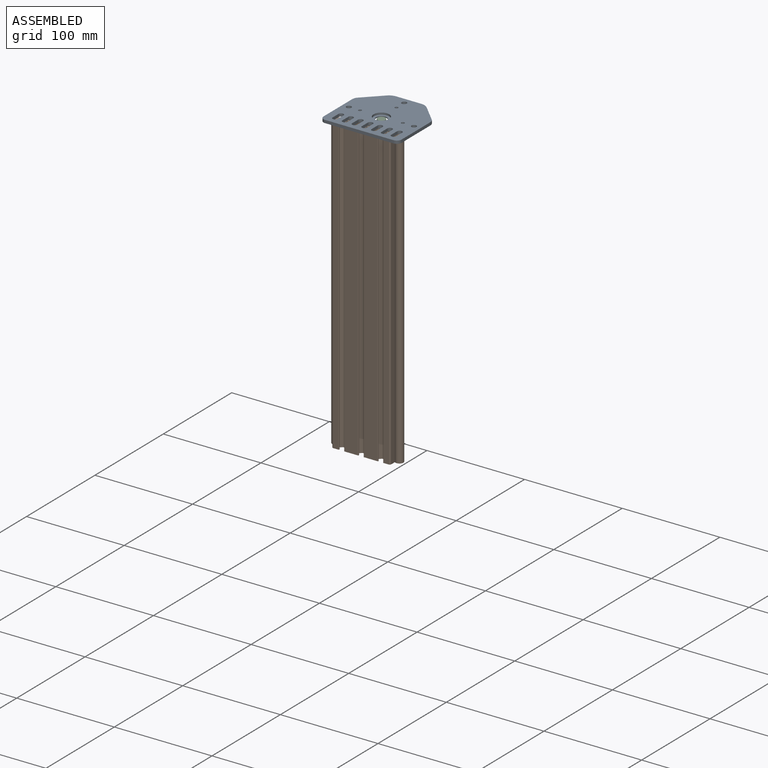
[diagram: assembled view]
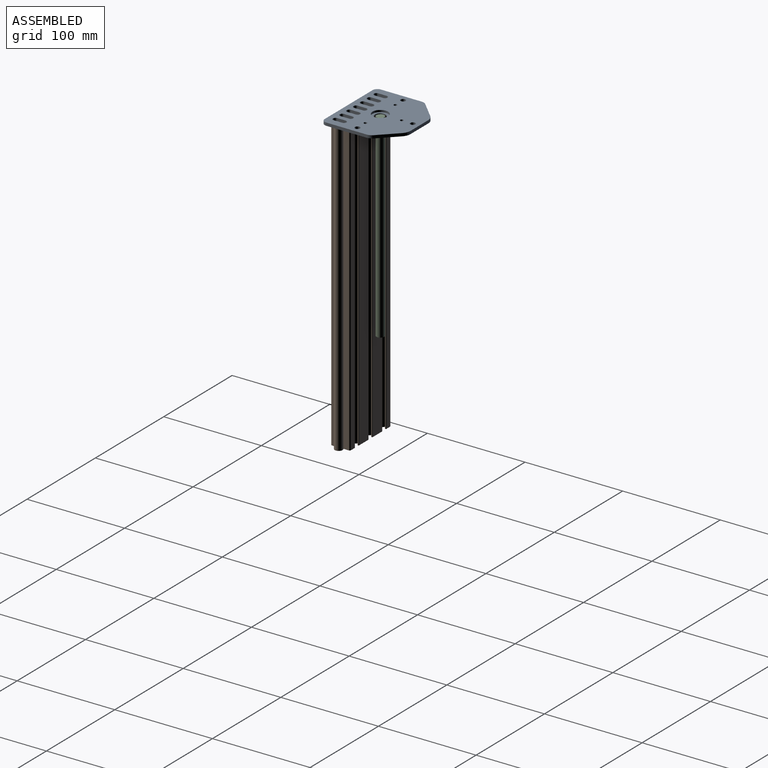
[diagram: assembled view, second angle]
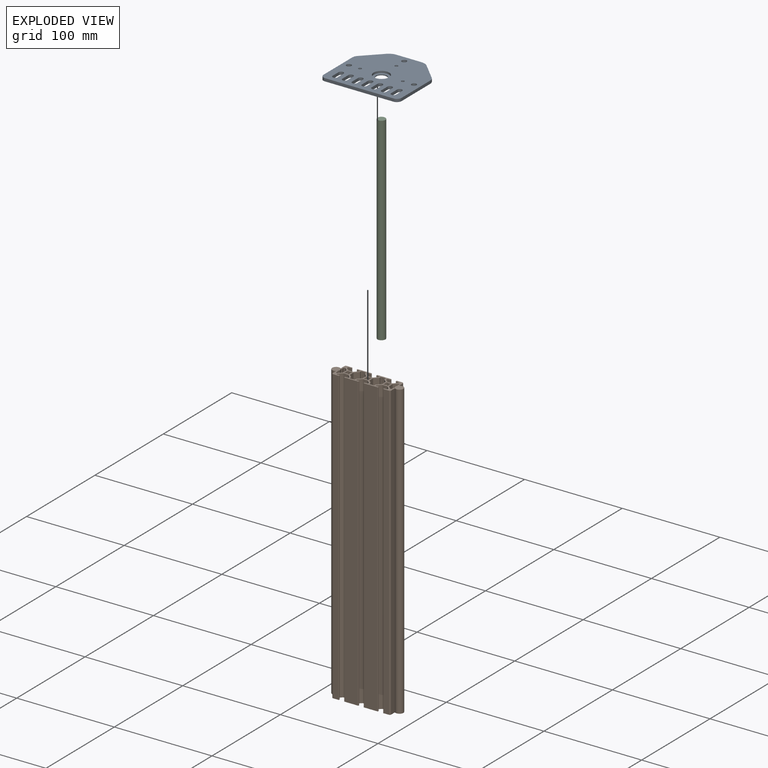
[diagram: exploded view]
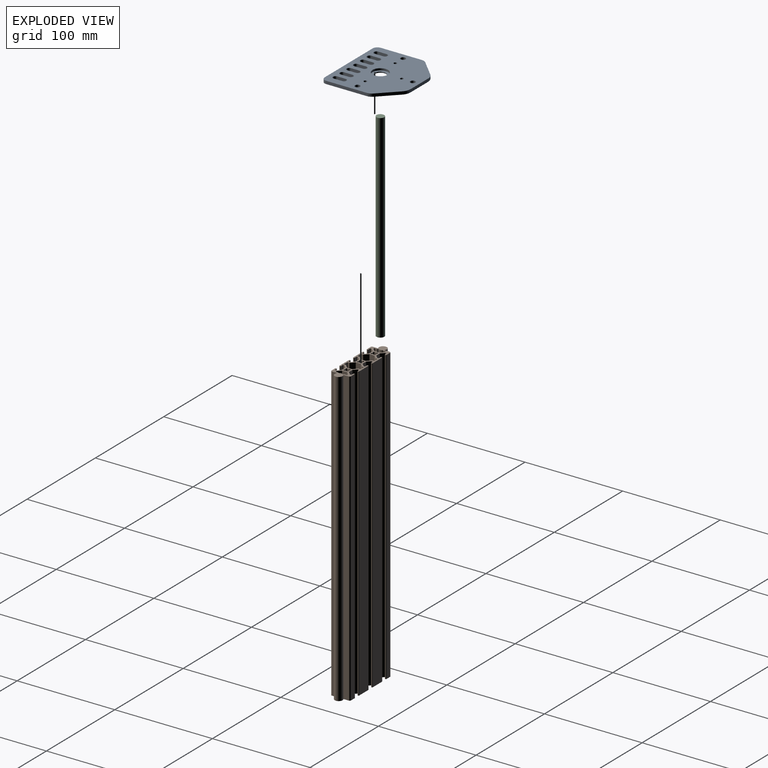
[diagram: exploded view, second angle]
ASSEMBLY  parts=3 mates=2
PART A: 51 faces, bbox 80x72.5x3 mm
  f0: cylinder r=8.02mm len=16.05mm, axis (0,0,1), area 100.8mm2, adj f15,f50
  f1: cylinder r=2.55mm len=5.1mm, axis (0,0,-1), area 48.1mm2, adj f15,f16
  f2: cylinder r=2.55mm len=5.1mm, axis (0,0,-1), area 48.1mm2, adj f15,f16
  f3: cylinder r=2.55mm len=5.1mm, axis (0,0,-1), area 48.1mm2, adj f15,f16
  f4: cylinder r=2.55mm len=5.1mm, axis (0,0,-1), area 24mm2, adj f15,f16,f48,f49
  f5: cylinder r=2.55mm len=5.1mm, axis (0,0,-1), area 24mm2, adj f15,f16,f45,f46
  f6: cylinder r=2.55mm len=5.1mm, axis (0,0,-1), area 24mm2, adj f15,f16,f42,f43
  f7: cylinder r=2.55mm len=5.1mm, axis (0,0,-1), area 24mm2, adj f15,f16,f39,f40
  f8: cylinder r=2.55mm len=5.1mm, axis (0,0,-1), area 24mm2, adj f15,f16,f36,f37
  f9: cylinder r=2.55mm len=5.1mm, axis (0,0,-1), area 24mm2, adj f15,f16,f33,f34
  f10: cylinder r=2.55mm len=5.1mm, axis (0,0,-1), area 24mm2, adj f15,f16,f30,f31
  f11: cylinder r=1.6mm len=3.2mm, axis (0,0,-1), area 30.2mm2, adj f15,f16
  f12: cylinder r=1.6mm len=3.2mm, axis (0,0,-1), area 30.2mm2, adj f15,f16
  f13: cylinder r=1.6mm len=3.2mm, axis (0,0,-1), area 30.2mm2, adj f15,f16
  f14: cylinder r=5.5mm len=11mm, axis (0,0,-1), area 34.6mm2, adj f16,f50
  f15: plane 80x72.5mm, normal (0,0,1), area 4525.9mm2, adj f0,f1,f2,f3,f4,f5,f6,f7
  f16: plane 80x72.5mm, normal (0,0,-1), area 4633.2mm2, adj f1,f2,f3,f4,f5,f6,f7,f8
  f17: cylinder r=5mm len=5mm, axis (0,0,-1), area 23.6mm2, adj f15,f16,f18,f28
  f18: plane 70x3mm, normal (0,-1,0), area 210mm2, adj f15,f16,f17,f19
  f19: cylinder r=5mm len=5mm, axis (0,0,-1), area 23.6mm2, adj f15,f16,f18,f20
  f20: plane 41.81x3mm, normal (1,0,0), area 125.4mm2, adj f15,f16,f19,f21
  f21: cylinder r=7.25mm len=5.13mm, axis (0,0,-1), area 17.1mm2, adj f15,f16,f20,f22
  f22: plane 17.44x17.44mm, normal (0.71,0.71,0), area 74mm2, adj f15,f16,f21,f23
  f23: cylinder r=10.68mm len=7.55mm, axis (0,0,-1), area 25.2mm2, adj f15,f16,f22,f24
  f24: plane 25.77x3mm, normal (0,1,0), area 77.3mm2, adj f15,f16,f23,f25
  f25: cylinder r=10.68mm len=7.55mm, axis (0,0,-1), area 25.2mm2, adj f15,f16,f24,f26
  f26: plane 17.44x17.44mm, normal (-0.71,0.71,0), area 74mm2, adj f15,f16,f25,f27
  f27: cylinder r=7.25mm len=5.13mm, axis (0,0,-1), area 17.1mm2, adj f15,f16,f26,f28
  f28: plane 41.81x3mm, normal (-1,0,0), area 125.4mm2, adj f15,f16,f17,f27
  f29: cylinder r=2.55mm len=5.1mm, axis (0,0,-1), area 24mm2, adj f15,f16,f30,f31
  f30: plane 8.7x3mm, normal (-1,0,0), area 26.1mm2, adj f10,f15,f16,f29
  f31: plane 8.7x3mm, normal (1,0,0), area 26.1mm2, adj f10,f15,f16,f29
  f32: cylinder r=2.55mm len=5.1mm, axis (0,0,-1), area 24mm2, adj f15,f16,f33,f34
  f33: plane 8.7x3mm, normal (-1,0,0), area 26.1mm2, adj f9,f15,f16,f32
  f34: plane 8.7x3mm, normal (1,0,0), area 26.1mm2, adj f9,f15,f16,f32
  f35: cylinder r=2.55mm len=5.1mm, axis (0,0,-1), area 24mm2, adj f15,f16,f36,f37
  f36: plane 8.7x3mm, normal (-1,0,0), area 26.1mm2, adj f8,f15,f16,f35
  f37: plane 8.7x3mm, normal (1,0,0), area 26.1mm2, adj f8,f15,f16,f35
  f38: cylinder r=2.55mm len=5.1mm, axis (0,0,-1), area 24mm2, adj f15,f16,f39,f40
  f39: plane 8.7x3mm, normal (-1,0,0), area 26.1mm2, adj f7,f15,f16,f38
  f40: plane 8.7x3mm, normal (1,0,0), area 26.1mm2, adj f7,f15,f16,f38
  f41: cylinder r=2.55mm len=5.1mm, axis (0,0,-1), area 24mm2, adj f15,f16,f42,f43
  f42: plane 8.7x3mm, normal (-1,0,0), area 26.1mm2, adj f6,f15,f16,f41
  f43: plane 8.7x3mm, normal (1,0,0), area 26.1mm2, adj f6,f15,f16,f41
  f44: cylinder r=2.55mm len=5.1mm, axis (0,0,-1), area 24mm2, adj f15,f16,f45,f46
  f45: plane 8.7x3mm, normal (-1,0,0), area 26.1mm2, adj f5,f15,f16,f44
  f46: plane 8.7x3mm, normal (1,0,0), area 26.1mm2, adj f5,f15,f16,f44
  f47: cylinder r=2.55mm len=5.1mm, axis (0,0,-1), area 24mm2, adj f15,f16,f48,f49
  f48: plane 8.7x3mm, normal (-1,0,0), area 26.1mm2, adj f4,f15,f16,f47
  f49: plane 8.7x3mm, normal (1,0,0), area 26.1mm2, adj f4,f15,f16,f47
  f50: plane 16.05x16.05mm, normal (0,0,1), area 107.3mm2, adj f0,f14
PART B: 266 faces, bbox 72.9x20x300 mm
  f0: plane 300x3.54mm, normal (0.71,0.71,0), area 1502.9mm2, adj f1,f263,f264,f265
  f1: cylinder r=0.51mm len=300mm, axis (0,0,-1), area 119.7mm2, adj f0,f2,f264,f265
  f2: plane 300x4.77mm, normal (1,0,0), area 1430.4mm2, adj f1,f3,f264,f265
  f3: cylinder r=0.51mm len=300mm, axis (0,0,-1), area 119.7mm2, adj f2,f4,f264,f265
  f4: plane 300x3.54mm, normal (0.71,-0.71,0), area 1502.9mm2, adj f3,f5,f264,f265
  f5: cylinder r=0.51mm len=300mm, axis (0,0,-1), area 119.7mm2, adj f4,f6,f264,f265
  f6: plane 300x1.35mm, normal (1,0,0), area 404.2mm2, adj f5,f7,f264,f265
  f7: cylinder r=0.51mm len=300mm, axis (0,0,-1), area 239.4mm2, adj f6,f8,f264,f265
  f8: plane 300x3.99mm, normal (0,-1,0), area 1198.2mm2, adj f7,f9,f264,f265
  f9: cylinder r=0.51mm len=300mm, axis (0,0,-1), area 239.4mm2, adj f8,f10,f264,f265
  f10: plane 300x1.35mm, normal (-1,0,0), area 404.2mm2, adj f9,f11,f264,f265
  f11: cylinder r=0.51mm len=300mm, axis (0,0,-1), area 119.7mm2, adj f10,f12,f264,f265
  f12: plane 300x3.54mm, normal (-0.71,-0.71,0), area 1502.9mm2, adj f11,f13,f264,f265
  f13: cylinder r=0.51mm len=300mm, axis (0,0,-1), area 119.7mm2, adj f12,f14,f264,f265
  f14: plane 300x4.77mm, normal (-1,0,0), area 1430.4mm2, adj f13,f15,f264,f265
  f15: cylinder r=0.51mm len=300mm, axis (0,0,-1), area 119.7mm2, adj f14,f16,f264,f265
  f16: plane 300x3.54mm, normal (-0.71,0.71,0), area 1502.9mm2, adj f15,f17,f264,f265
  f17: cylinder r=0.51mm len=300mm, axis (0,0,-1), area 119.7mm2, adj f16,f18,f264,f265
  f18: plane 300x1.35mm, normal (-1,0,0), area 404.2mm2, adj f17,f19,f264,f265
  f19: cylinder r=0.51mm len=300mm, axis (0,0,-1), area 239.4mm2, adj f18,f20,f264,f265
  f20: plane 300x3.99mm, normal (0,1,0), area 1198.2mm2, adj f19,f21,f264,f265
  f21: cylinder r=0.51mm len=300mm, axis (0,0,-1), area 239.4mm2, adj f20,f22,f264,f265
  f22: plane 300x1.35mm, normal (1,0,0), area 404.2mm2, adj f21,f263,f264,f265
  f23: cylinder r=0.79mm len=300mm, axis (0,0,-1), area 499.6mm2, adj f24,f256,f264,f265
  f24: cylinder r=2.1mm len=300mm, axis (0,0,-1), area 495.1mm2, adj f23,f25,f264,f265
  f25: cylinder r=0.79mm len=300mm, axis (0,0,-1), area 499.6mm2, adj f24,f26,f264,f265
  f26: plane 300x0.18mm, normal (-0.71,0.71,0), area 76.2mm2, adj f25,f27,f264,f265
  f27: cylinder r=0.79mm len=300mm, axis (0,0,-1), area 499.6mm2, adj f26,f28,f264,f265
  f28: cylinder r=2.1mm len=300mm, axis (0,0,-1), area 495.1mm2, adj f27,f29,f264,f265
  f29: cylinder r=0.79mm len=300mm, axis (0,0,-1), area 499.6mm2, adj f28,f30,f264,f265
  f30: plane 300x0.18mm, normal (0.71,0.71,0), area 76.2mm2, adj f29,f31,f264,f265
  f31: cylinder r=0.79mm len=300mm, axis (0,0,-1), area 499.6mm2, adj f30,f32,f264,f265
  f32: cylinder r=2.1mm len=300mm, axis (0,0,-1), area 495.1mm2, adj f31,f33,f264,f265
  f33: cylinder r=0.79mm len=300mm, axis (0,0,-1), area 499.6mm2, adj f32,f34,f264,f265
  f34: plane 300x0.18mm, normal (0.71,-0.71,0), area 76.2mm2, adj f33,f35,f264,f265
  f35: cylinder r=0.79mm len=300mm, axis (0,0,-1), area 499.6mm2, adj f34,f36,f264,f265
  f36: cylinder r=2.1mm len=300mm, axis (0,0,-1), area 495.1mm2, adj f35,f37,f264,f265
  f37: cylinder r=0.79mm len=300mm, axis (0,0,-1), area 499.6mm2, adj f36,f256,f264,f265
  f38: plane 300x4.77mm, normal (-1,0,0), area 1430.4mm2, adj f39,f257,f264,f265
  f39: cylinder r=0.51mm len=300mm, axis (0,0,-1), area 119.7mm2, adj f38,f40,f264,f265
  f40: plane 300x3.54mm, normal (-0.71,0.71,0), area 1502.9mm2, adj f39,f41,f264,f265
  f41: cylinder r=0.51mm len=300mm, axis (0,0,-1), area 119.7mm2, adj f40,f42,f264,f265
  f42: plane 300x1.35mm, normal (-1,0,0), area 404.2mm2, adj f41,f43,f264,f265
  f43: cylinder r=0.51mm len=300mm, axis (0,0,-1), area 239.4mm2, adj f42,f44,f264,f265
  f44: plane 300x3.99mm, normal (0,1,0), area 1198.2mm2, adj f43,f45,f264,f265
  f45: cylinder r=0.51mm len=300mm, axis (0,0,-1), area 239.4mm2, adj f44,f46,f264,f265
  f46: plane 300x1.35mm, normal (1,0,0), area 404.2mm2, adj f45,f47,f264,f265
  f47: cylinder r=0.51mm len=300mm, axis (0,0,-1), area 119.7mm2, adj f46,f48,f264,f265
  f48: plane 300x3.54mm, normal (0.71,0.71,0), area 1502.9mm2, adj f47,f49,f264,f265
  f49: cylinder r=0.51mm len=300mm, axis (0,0,-1), area 119.7mm2, adj f48,f50,f264,f265
  f50: plane 300x4.77mm, normal (1,0,0), area 1430.4mm2, adj f49,f51,f264,f265
  f51: cylinder r=0.51mm len=300mm, axis (0,0,-1), area 119.7mm2, adj f50,f52,f264,f265
  f52: plane 300x3.54mm, normal (0.71,-0.71,0), area 1502.9mm2, adj f51,f53,f264,f265
  f53: cylinder r=0.51mm len=300mm, axis (0,0,-1), area 119.7mm2, adj f52,f54,f264,f265
  f54: plane 300x1.35mm, normal (1,0,0), area 404.2mm2, adj f53,f55,f264,f265
  f55: cylinder r=0.51mm len=300mm, axis (0,0,-1), area 239.4mm2, adj f54,f56,f264,f265
  f56: plane 300x3.99mm, normal (0,-1,0), area 1198.2mm2, adj f55,f57,f264,f265
  f57: cylinder r=0.51mm len=300mm, axis (0,0,-1), area 239.4mm2, adj f56,f58,f264,f265
  f58: plane 300x1.35mm, normal (-1,0,0), area 404.2mm2, adj f57,f59,f264,f265
  f59: cylinder r=0.51mm len=300mm, axis (0,0,-1), area 119.7mm2, adj f58,f60,f264,f265
  f60: plane 300x3.54mm, normal (-0.71,-0.71,0), area 1502.9mm2, adj f59,f257,f264,f265
  f61: plane 300x0.18mm, normal (-0.71,0.71,0), area 76.2mm2, adj f62,f258,f264,f265
  f62: cylinder r=0.79mm len=300mm, axis (0,0,-1), area 499.6mm2, adj f61,f63,f264,f265
  f63: cylinder r=2.1mm len=300mm, axis (0,0,-1), area 495.1mm2, adj f62,f64,f264,f265
  f64: cylinder r=0.79mm len=300mm, axis (0,0,-1), area 499.6mm2, adj f63,f65,f264,f265
  f65: plane 300x0.18mm, normal (0.71,0.71,0), area 76.2mm2, adj f64,f66,f264,f265
  f66: cylinder r=0.79mm len=300mm, axis (0,0,-1), area 499.6mm2, adj f65,f67,f264,f265
  f67: cylinder r=2.1mm len=300mm, axis (0,0,-1), area 495.1mm2, adj f66,f68,f264,f265
  f68: cylinder r=0.79mm len=300mm, axis (0,0,-1), area 499.6mm2, adj f67,f69,f264,f265
  f69: plane 300x0.18mm, normal (0.71,-0.71,0), area 76.2mm2, adj f68,f70,f264,f265
  f70: cylinder r=0.79mm len=300mm, axis (0,0,-1), area 499.6mm2, adj f69,f71,f264,f265
  f71: cylinder r=2.1mm len=300mm, axis (0,0,-1), area 495.1mm2, adj f70,f72,f264,f265
  f72: cylinder r=0.79mm len=300mm, axis (0,0,-1), area 499.6mm2, adj f71,f73,f264,f265
  f73: plane 300x0.18mm, normal (-0.71,-0.71,0), area 76.2mm2, adj f72,f74,f264,f265
  f74: cylinder r=0.79mm len=300mm, axis (0,0,-1), area 499.6mm2, adj f73,f75,f264,f265
  f75: cylinder r=2.1mm len=300mm, axis (0,0,-1), area 495.1mm2, adj f74,f258,f264,f265
  f76: cylinder r=0.79mm len=300mm, axis (0,0,-1), area 499.6mm2, adj f77,f259,f264,f265
  f77: plane 300x0.18mm, normal (0.71,-0.71,0), area 76.2mm2, adj f76,f78,f264,f265
  f78: cylinder r=0.79mm len=300mm, axis (0,0,-1), area 499.6mm2, adj f77,f79,f264,f265
  f79: cylinder r=2.1mm len=300mm, axis (0,0,-1), area 495.1mm2, adj f78,f80,f264,f265
  f80: cylinder r=0.79mm len=300mm, axis (0,0,-1), area 499.6mm2, adj f79,f81,f264,f265
  f81: plane 300x0.18mm, normal (-0.71,-0.71,0), area 76.2mm2, adj f80,f82,f264,f265
  f82: cylinder r=0.79mm len=300mm, axis (0,0,-1), area 499.6mm2, adj f81,f83,f264,f265
  f83: cylinder r=2.1mm len=300mm, axis (0,0,-1), area 495.1mm2, adj f82,f84,f264,f265
  f84: cylinder r=0.79mm len=300mm, axis (0,0,-1), area 499.6mm2, adj f83,f85,f264,f265
  f85: plane 300x0.18mm, normal (-0.71,0.71,0), area 76.2mm2, adj f84,f86,f264,f265
  f86: cylinder r=0.79mm len=300mm, axis (0,0,-1), area 499.6mm2, adj f85,f87,f264,f265
  f87: cylinder r=2.1mm len=300mm, axis (0,0,-1), area 495.1mm2, adj f86,f88,f264,f265
  f88: cylinder r=0.79mm len=300mm, axis (0,0,-1), area 499.6mm2, adj f87,f89,f264,f265
  f89: plane 300x0.18mm, normal (0.71,0.71,0), area 76.2mm2, adj f88,f90,f264,f265
  f90: cylinder r=0.79mm len=300mm, axis (0,0,-1), area 499.6mm2, adj f89,f259,f264,f265
  f91: cylinder r=4mm len=300mm, axis (0,0,-1), area 1722mm2, adj f92,f260,f264,f265
  f92: plane 300x0.43mm, normal (0,1,0), area 128.5mm2, adj f91,f93,f264,f265
  f93: cylinder r=0.51mm len=300mm, axis (0,0,-1), area 239.4mm2, adj f92,f94,f264,f265
  f94: plane 300x2.35mm, normal (-1,0,0), area 704.7mm2, adj f93,f95,f264,f265
  f95: cylinder r=0.51mm len=300mm, axis (0,0,-1), area 239.4mm2, adj f94,f96,f264,f265
  f96: plane 300x0.73mm, normal (0,1,0), area 217.8mm2, adj f95,f97,f264,f265
  f97: cylinder r=0.51mm len=300mm, axis (0,0,-1), area 119.7mm2, adj f96,f98,f264,f265
  f98: plane 300x3.1mm, normal (0.71,0.71,0), area 1316.5mm2, adj f97,f99,f264,f265
  f99: cylinder r=0.51mm len=300mm, axis (0,0,-1), area 119.7mm2, adj f98,f100,f264,f265
  f100: plane 300x4.77mm, normal (1,0,0), area 1430.4mm2, adj f99,f101,f264,f265
  f101: cylinder r=0.51mm len=300mm, axis (0,0,-1), area 119.7mm2, adj f100,f102,f264,f265
  f102: plane 300x3.1mm, normal (0.71,-0.71,0), area 1316.5mm2, adj f101,f103,f264,f265
  f103: cylinder r=0.51mm len=300mm, axis (0,0,-1), area 119.7mm2, adj f102,f104,f264,f265
  f104: plane 300x0.73mm, normal (0,-1,0), area 217.8mm2, adj f103,f105,f264,f265
  f105: cylinder r=0.51mm len=300mm, axis (0,0,-1), area 239.4mm2, adj f104,f106,f264,f265
  f106: plane 300x2.35mm, normal (-1,0,0), area 704.7mm2, adj f105,f107,f264,f265
  f107: cylinder r=0.51mm len=300mm, axis (0,0,-1), area 239.4mm2, adj f106,f260,f264,f265
  f108: plane 300x0.43mm, normal (0,1,0), area 128.5mm2, adj f109,f261,f264,f265
  f109: cylinder r=4mm len=300mm, axis (0,0,-1), area 1722mm2, adj f108,f110,f264,f265
  f110: plane 300x0.43mm, normal (0,-1,0), area 128.5mm2, adj f109,f111,f264,f265
  f111: cylinder r=0.51mm len=300mm, axis (0,0,-1), area 239.4mm2, adj f110,f112,f264,f265
  f112: plane 300x2.35mm, normal (1,0,0), area 704.7mm2, adj f111,f113,f264,f265
  f113: cylinder r=0.51mm len=300mm, axis (0,0,-1), area 239.4mm2, adj f112,f114,f264,f265
  f114: plane 300x0.73mm, normal (0,-1,0), area 217.8mm2, adj f113,f115,f264,f265
  f115: cylinder r=0.51mm len=300mm, axis (0,0,-1), area 119.7mm2, adj f114,f116,f264,f265
  f116: plane 300x3.1mm, normal (-0.71,-0.71,0), area 1316.5mm2, adj f115,f117,f264,f265
  f117: cylinder r=0.51mm len=300mm, axis (0,0,-1), area 119.7mm2, adj f116,f118,f264,f265
  f118: plane 300x4.77mm, normal (-1,0,0), area 1430.4mm2, adj f117,f119,f264,f265
  f119: cylinder r=0.51mm len=300mm, axis (0,0,-1), area 119.7mm2, adj f118,f120,f264,f265
  f120: plane 300x3.1mm, normal (-0.71,0.71,0), area 1316.5mm2, adj f119,f121,f264,f265
  f121: cylinder r=0.51mm len=300mm, axis (0,0,-1), area 119.7mm2, adj f120,f122,f264,f265
  f122: plane 300x0.73mm, normal (0,1,0), area 217.8mm2, adj f121,f123,f264,f265
  f123: cylinder r=0.51mm len=300mm, axis (0,0,-1), area 239.4mm2, adj f122,f124,f264,f265
  f124: plane 300x2.35mm, normal (1,0,0), area 704.7mm2, adj f123,f261,f264,f265
  f125: cylinder r=4mm len=300mm, axis (0,0,-1), area 5352mm2, adj f126,f262,f264,f265
  f126: plane 300x5.34mm, normal (-1,0,0), area 1601.4mm2, adj f125,f127,f264,f265
  f127: cylinder r=1.5mm len=300mm, axis (0,0,-1), area 706.9mm2, adj f126,f128,f264,f265
  f128: plane 300x5.36mm, normal (0,-1,0), area 1608.6mm2, adj f127,f129,f264,f265
  f129: cylinder r=0.51mm len=300mm, axis (0,0,-1), area 239.4mm2, adj f128,f130,f264,f265
  f130: plane 300x0.48mm, normal (1,0,0), area 145.2mm2, adj f129,f131,f264,f265
  f131: cylinder r=0.51mm len=300mm, axis (0,0,-1), area 239.4mm2, adj f130,f132,f264,f265
  f132: plane 300x2.35mm, normal (0,1,0), area 704.7mm2, adj f131,f133,f264,f265
  f133: cylinder r=0.51mm len=300mm, axis (0,0,-1), area 239.4mm2, adj f132,f134,f264,f265
  f134: plane 300x0.73mm, normal (1,0,0), area 217.8mm2, adj f133,f135,f264,f265
  f135: cylinder r=0.51mm len=300mm, axis (0,0,-1), area 119.7mm2, adj f134,f136,f264,f265
  f136: plane 300x3.1mm, normal (0.71,-0.71,0), area 1316.5mm2, adj f135,f137,f264,f265
  f137: cylinder r=0.51mm len=300mm, axis (0,0,-1), area 119.7mm2, adj f136,f138,f264,f265
  f138: plane 300x4.77mm, normal (0,-1,0), area 1430.4mm2, adj f137,f139,f264,f265
  f139: cylinder r=0.51mm len=300mm, axis (0,0,-1), area 119.7mm2, adj f138,f140,f264,f265
  f140: plane 300x3.1mm, normal (-0.71,-0.71,0), area 1316.5mm2, adj f139,f141,f264,f265
  f141: cylinder r=0.51mm len=300mm, axis (0,0,-1), area 119.7mm2, adj f140,f142,f264,f265
  f142: plane 300x0.73mm, normal (-1,0,0), area 217.8mm2, adj f141,f143,f264,f265
  f143: cylinder r=0.51mm len=300mm, axis (0,0,-1), area 239.4mm2, adj f142,f144,f264,f265
  f144: plane 300x2.35mm, normal (0,1,0), area 704.7mm2, adj f143,f145,f264,f265
  f145: cylinder r=0.51mm len=300mm, axis (0,0,-1), area 239.4mm2, adj f144,f146,f264,f265
  f146: plane 300x0.48mm, normal (-1,0,0), area 145.2mm2, adj f145,f147,f264,f265
  f147: cylinder r=0.51mm len=300mm, axis (0,0,-1), area 239.4mm2, adj f146,f148,f264,f265
  f148: plane 300x13.72mm, normal (0,-1,0), area 4117.2mm2, adj f147,f149,f264,f265
  f149: cylinder r=0.51mm len=300mm, axis (0,0,-1), area 239.4mm2, adj f148,f150,f264,f265
  f150: plane 300x0.48mm, normal (1,0,0), area 145.2mm2, adj f149,f151,f264,f265
  f151: cylinder r=0.51mm len=300mm, axis (0,0,-1), area 239.4mm2, adj f150,f152,f264,f265
  f152: plane 300x2.35mm, normal (0,1,0), area 704.7mm2, adj f151,f153,f264,f265
  f153: cylinder r=0.51mm len=300mm, axis (0,0,-1), area 239.4mm2, adj f152,f154,f264,f265
  f154: plane 300x0.73mm, normal (1,0,0), area 217.8mm2, adj f153,f155,f264,f265
  f155: cylinder r=0.51mm len=300mm, axis (0,0,-1), area 119.7mm2, adj f154,f156,f264,f265
  f156: plane 300x3.1mm, normal (0.71,-0.71,0), area 1316.5mm2, adj f155,f157,f264,f265
  f157: cylinder r=0.51mm len=300mm, axis (0,0,-1), area 119.7mm2, adj f156,f158,f264,f265
  f158: plane 300x4.77mm, normal (0,-1,0), area 1430.4mm2, adj f157,f159,f264,f265
  f159: cylinder r=0.51mm len=300mm, axis (0,0,-1), area 119.7mm2, adj f158,f160,f264,f265
  f160: plane 300x3.1mm, normal (-0.71,-0.71,0), area 1316.5mm2, adj f159,f161,f264,f265
  f161: cylinder r=0.51mm len=300mm, axis (0,0,-1), area 119.7mm2, adj f160,f162,f264,f265
  f162: plane 300x0.73mm, normal (-1,0,0), area 217.8mm2, adj f161,f163,f264,f265
  f163: cylinder r=0.51mm len=300mm, axis (0,0,-1), area 239.4mm2, adj f162,f164,f264,f265
  f164: plane 300x2.35mm, normal (0,1,0), area 704.7mm2, adj f163,f165,f264,f265
  f165: cylinder r=0.51mm len=300mm, axis (0,0,-1), area 239.4mm2, adj f164,f166,f264,f265
  f166: plane 300x0.48mm, normal (-1,0,0), area 145.2mm2, adj f165,f167,f264,f265
  f167: cylinder r=0.51mm len=300mm, axis (0,0,-1), area 239.4mm2, adj f166,f168,f264,f265
  f168: plane 300x13.72mm, normal (0,-1,0), area 4117.2mm2, adj f167,f169,f264,f265
  f169: cylinder r=0.51mm len=300mm, axis (0,0,-1), area 239.4mm2, adj f168,f170,f264,f265
  f170: plane 300x0.48mm, normal (1,0,0), area 145.2mm2, adj f169,f171,f264,f265
  f171: cylinder r=0.51mm len=300mm, axis (0,0,-1), area 239.4mm2, adj f170,f172,f264,f265
  f172: plane 300x2.35mm, normal (0,1,0), area 704.7mm2, adj f171,f173,f264,f265
  f173: cylinder r=0.51mm len=300mm, axis (0,0,-1), area 239.4mm2, adj f172,f174,f264,f265
  f174: plane 300x0.73mm, normal (1,0,0), area 217.8mm2, adj f173,f175,f264,f265
  f175: cylinder r=0.51mm len=300mm, axis (0,0,-1), area 119.7mm2, adj f174,f176,f264,f265
  f176: plane 300x3.1mm, normal (0.71,-0.71,0), area 1316.5mm2, adj f175,f177,f264,f265
  f177: cylinder r=0.51mm len=300mm, axis (0,0,-1), area 119.7mm2, adj f176,f178,f264,f265
  f178: plane 300x4.77mm, normal (0,-1,0), area 1430.4mm2, adj f177,f179,f264,f265
  f179: cylinder r=0.51mm len=300mm, axis (0,0,-1), area 119.7mm2, adj f178,f180,f264,f265
  f180: plane 300x3.1mm, normal (-0.71,-0.71,0), area 1316.5mm2, adj f179,f181,f264,f265
  f181: cylinder r=0.51mm len=300mm, axis (0,0,-1), area 119.7mm2, adj f180,f182,f264,f265
  f182: plane 300x0.73mm, normal (-1,0,0), area 217.8mm2, adj f181,f183,f264,f265
  f183: cylinder r=0.51mm len=300mm, axis (0,0,-1), area 239.4mm2, adj f182,f184,f264,f265
  f184: plane 300x2.35mm, normal (0,1,0), area 704.7mm2, adj f183,f185,f264,f265
  f185: cylinder r=0.51mm len=300mm, axis (0,0,-1), area 239.4mm2, adj f184,f186,f264,f265
  f186: plane 300x0.48mm, normal (-1,0,0), area 145.2mm2, adj f185,f187,f264,f265
  f187: cylinder r=0.51mm len=300mm, axis (0,0,-1), area 239.4mm2, adj f186,f188,f264,f265
  f188: plane 300x5.36mm, normal (0,-1,0), area 1608.6mm2, adj f187,f189,f264,f265
  f189: cylinder r=1.5mm len=300mm, axis (0,0,-1), area 706.9mm2, adj f188,f190,f264,f265
  f190: plane 300x5.34mm, normal (1,0,0), area 1601.4mm2, adj f189,f191,f264,f265
  f191: cylinder r=4mm len=300mm, axis (0,0,-1), area 5352mm2, adj f190,f192,f264,f265
  f192: plane 300x5.34mm, normal (1,0,0), area 1601.4mm2, adj f191,f193,f264,f265
  f193: cylinder r=1.5mm len=300mm, axis (0,0,-1), area 706.9mm2, adj f192,f194,f264,f265
  f194: plane 300x5.36mm, normal (0,1,0), area 1608.6mm2, adj f193,f195,f264,f265
  f195: cylinder r=0.51mm len=300mm, axis (0,0,-1), area 239.4mm2, adj f194,f196,f264,f265
  f196: plane 300x0.48mm, normal (-1,0,0), area 145.2mm2, adj f195,f197,f264,f265
  f197: cylinder r=0.51mm len=300mm, axis (0,0,-1), area 239.4mm2, adj f196,f198,f264,f265
  f198: plane 300x2.35mm, normal (0,-1,0), area 704.7mm2, adj f197,f199,f264,f265
  f199: cylinder r=0.51mm len=300mm, axis (0,0,-1), area 239.4mm2, adj f198,f200,f264,f265
  f200: plane 300x0.73mm, normal (-1,0,0), area 217.8mm2, adj f199,f201,f264,f265
  f201: cylinder r=0.51mm len=300mm, axis (0,0,-1), area 119.7mm2, adj f200,f202,f264,f265
  f202: plane 300x3.1mm, normal (-0.71,0.71,0), area 1316.5mm2, adj f201,f203,f264,f265
  f203: cylinder r=0.51mm len=300mm, axis (0,0,-1), area 119.7mm2, adj f202,f204,f264,f265
  f204: plane 300x4.77mm, normal (0,1,0), area 1430.4mm2, adj f203,f205,f264,f265
  f205: cylinder r=0.51mm len=300mm, axis (0,0,-1), area 119.7mm2, adj f204,f206,f264,f265
  f206: plane 300x3.1mm, normal (0.71,0.71,0), area 1316.5mm2, adj f205,f207,f264,f265
  f207: cylinder r=0.51mm len=300mm, axis (0,0,-1), area 119.7mm2, adj f206,f208,f264,f265
  f208: plane 300x0.73mm, normal (1,0,0), area 217.8mm2, adj f207,f209,f264,f265
  f209: cylinder r=0.51mm len=300mm, axis (0,0,-1), area 239.4mm2, adj f208,f210,f264,f265
  f210: plane 300x2.35mm, normal (0,-1,0), area 704.7mm2, adj f209,f211,f264,f265
  f211: cylinder r=0.51mm len=300mm, axis (0,0,-1), area 239.4mm2, adj f210,f212,f264,f265
  f212: plane 300x0.48mm, normal (1,0,0), area 145.2mm2, adj f211,f213,f264,f265
  f213: cylinder r=0.51mm len=300mm, axis (0,0,-1), area 239.4mm2, adj f212,f214,f264,f265
  f214: plane 300x13.72mm, normal (0,1,0), area 4117.2mm2, adj f213,f215,f264,f265
  f215: cylinder r=0.51mm len=300mm, axis (0,0,-1), area 239.4mm2, adj f214,f216,f264,f265
  f216: plane 300x0.48mm, normal (-1,0,0), area 145.2mm2, adj f215,f217,f264,f265
  f217: cylinder r=0.51mm len=300mm, axis (0,0,-1), area 239.4mm2, adj f216,f218,f264,f265
  f218: plane 300x2.35mm, normal (0,-1,0), area 704.7mm2, adj f217,f219,f264,f265
  f219: cylinder r=0.51mm len=300mm, axis (0,0,-1), area 239.4mm2, adj f218,f220,f264,f265
  f220: plane 300x0.73mm, normal (-1,0,0), area 217.8mm2, adj f219,f221,f264,f265
  f221: cylinder r=0.51mm len=300mm, axis (0,0,-1), area 119.7mm2, adj f220,f222,f264,f265
  f222: plane 300x3.1mm, normal (-0.71,0.71,0), area 1316.5mm2, adj f221,f223,f264,f265
  f223: cylinder r=0.51mm len=300mm, axis (0,0,-1), area 119.7mm2, adj f222,f224,f264,f265
  f224: plane 300x4.77mm, normal (0,1,0), area 1430.4mm2, adj f223,f225,f264,f265
  f225: cylinder r=0.51mm len=300mm, axis (0,0,-1), area 119.7mm2, adj f224,f226,f264,f265
  f226: plane 300x3.1mm, normal (0.71,0.71,0), area 1316.5mm2, adj f225,f227,f264,f265
  f227: cylinder r=0.51mm len=300mm, axis (0,0,-1), area 119.7mm2, adj f226,f228,f264,f265
  f228: plane 300x0.73mm, normal (1,0,0), area 217.8mm2, adj f227,f229,f264,f265
  f229: cylinder r=0.51mm len=300mm, axis (0,0,-1), area 239.4mm2, adj f228,f230,f264,f265
  f230: plane 300x2.35mm, normal (0,-1,0), area 704.7mm2, adj f229,f231,f264,f265
  f231: cylinder r=0.51mm len=300mm, axis (0,0,-1), area 239.4mm2, adj f230,f232,f264,f265
  f232: plane 300x0.48mm, normal (1,0,0), area 145.2mm2, adj f231,f233,f264,f265
  f233: cylinder r=0.51mm len=300mm, axis (0,0,-1), area 239.4mm2, adj f232,f234,f264,f265
  f234: plane 300x13.72mm, normal (0,1,0), area 4117.2mm2, adj f233,f235,f264,f265
  f235: cylinder r=0.51mm len=300mm, axis (0,0,-1), area 239.4mm2, adj f234,f236,f264,f265
  f236: plane 300x0.48mm, normal (-1,0,0), area 145.2mm2, adj f235,f237,f264,f265
  f237: cylinder r=0.51mm len=300mm, axis (0,0,-1), area 239.4mm2, adj f236,f238,f264,f265
  f238: plane 300x2.35mm, normal (0,-1,0), area 704.7mm2, adj f237,f239,f264,f265
  f239: cylinder r=0.51mm len=300mm, axis (0,0,-1), area 239.4mm2, adj f238,f240,f264,f265
  f240: plane 300x0.73mm, normal (-1,0,0), area 217.8mm2, adj f239,f241,f264,f265
  f241: cylinder r=0.51mm len=300mm, axis (0,0,-1), area 119.7mm2, adj f240,f242,f264,f265
  f242: plane 300x3.1mm, normal (-0.71,0.71,0), area 1316.5mm2, adj f241,f243,f264,f265
  f243: cylinder r=0.51mm len=300mm, axis (0,0,-1), area 119.7mm2, adj f242,f244,f264,f265
  f244: plane 300x4.77mm, normal (0,1,0), area 1430.4mm2, adj f243,f245,f264,f265
  f245: cylinder r=0.51mm len=300mm, axis (0,0,-1), area 119.7mm2, adj f244,f246,f264,f265
  f246: plane 300x3.1mm, normal (0.71,0.71,0), area 1316.5mm2, adj f245,f247,f264,f265
  f247: cylinder r=0.51mm len=300mm, axis (0,0,-1), area 119.7mm2, adj f246,f248,f264,f265
  f248: plane 300x0.73mm, normal (1,0,0), area 217.8mm2, adj f247,f249,f264,f265
  f249: cylinder r=0.51mm len=300mm, axis (0,0,-1), area 239.4mm2, adj f248,f250,f264,f265
  f250: plane 300x2.35mm, normal (0,-1,0), area 704.7mm2, adj f249,f251,f264,f265
  f251: cylinder r=0.51mm len=300mm, axis (0,0,-1), area 239.4mm2, adj f250,f252,f264,f265
  f252: plane 300x0.48mm, normal (1,0,0), area 145.2mm2, adj f251,f253,f264,f265
  f253: cylinder r=0.51mm len=300mm, axis (0,0,-1), area 239.4mm2, adj f252,f254,f264,f265
  f254: plane 300x5.36mm, normal (0,1,0), area 1608.6mm2, adj f253,f255,f264,f265
  f255: cylinder r=1.5mm len=300mm, axis (0,0,-1), area 706.9mm2, adj f254,f262,f264,f265
  f256: plane 300x0.18mm, normal (-0.71,-0.71,0), area 76.2mm2, adj f23,f37,f264,f265
  f257: cylinder r=0.51mm len=300mm, axis (0,0,-1), area 119.7mm2, adj f38,f60,f264,f265
  f258: cylinder r=0.79mm len=300mm, axis (0,0,-1), area 499.6mm2, adj f61,f75,f264,f265
  f259: cylinder r=2.1mm len=300mm, axis (0,0,-1), area 495.1mm2, adj f76,f90,f264,f265
  f260: plane 300x0.43mm, normal (0,-1,0), area 128.5mm2, adj f91,f107,f264,f265
  f261: cylinder r=0.51mm len=300mm, axis (0,0,-1), area 239.4mm2, adj f108,f124,f264,f265
  f262: plane 300x5.34mm, normal (-1,0,0), area 1601.4mm2, adj f125,f255,f264,f265
  f263: cylinder r=0.51mm len=300mm, axis (0,0,-1), area 119.7mm2, adj f0,f22,f264,f265
  f264: plane 72.9x20mm, normal (0,0,1), area 491.6mm2, adj f0,f1,f2,f3,f4,f5,f6,f7
  f265: plane 72.9x20mm, normal (0,0,-1), area 491.6mm2, adj f0,f1,f2,f3,f4,f5,f6,f7
PART C: 3 faces, bbox 8x8x203.2 mm
  f0: cylinder r=4mm len=203.2mm, axis (0,0,-1), area 5107mm2, adj f1,f2
  f1: plane 8x8mm, normal (0,0,1), area 50.3mm2, adj f0
  f2: plane 8x8mm, normal (0,0,-1), area 50.3mm2, adj f0
PLACE A t=(54.47,-29.9,119.79)mm
PLACE B t=(106.58,-5.43,-180.21)mm
PLACE C t=(54.47,-29.9,-82.41)mm
MATE fastened B.f63 <-> A.f16  axis (0,0,1) through (54.47,-49.9,119.79)mm
MATE fastened A.f0 <-> C.f0  axis (0,0,1) through (54.47,-29.9,120.79)mm
